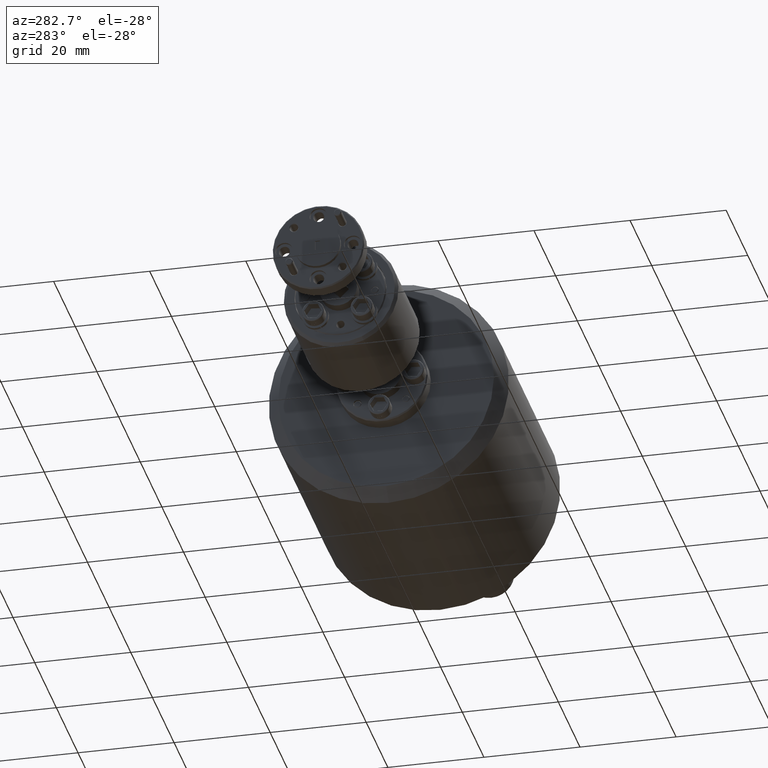
[diagram: clean part render]
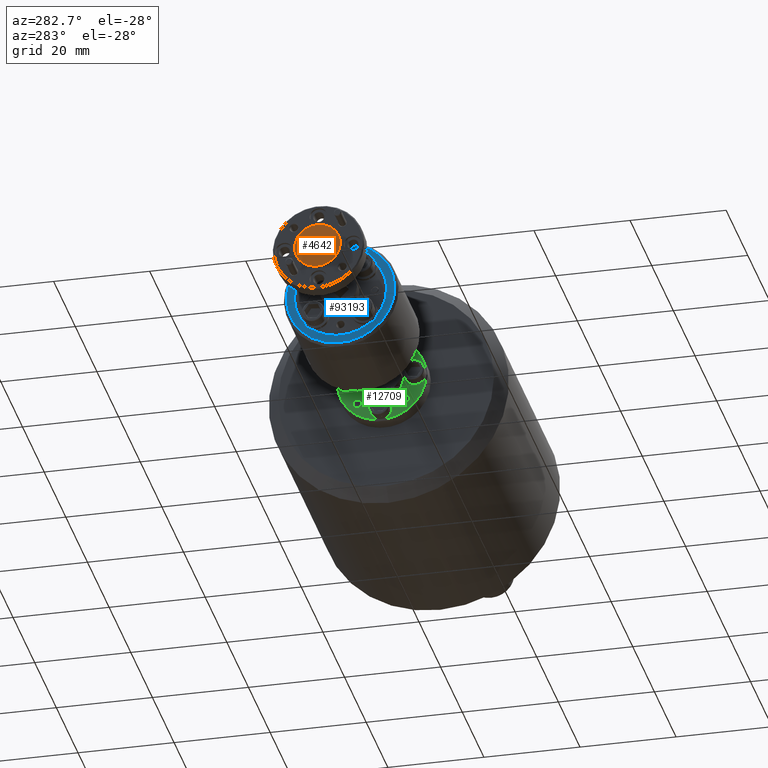
[diagram: same view with three faces highlighted in distinct colors, each labeled with its STEP entity id]
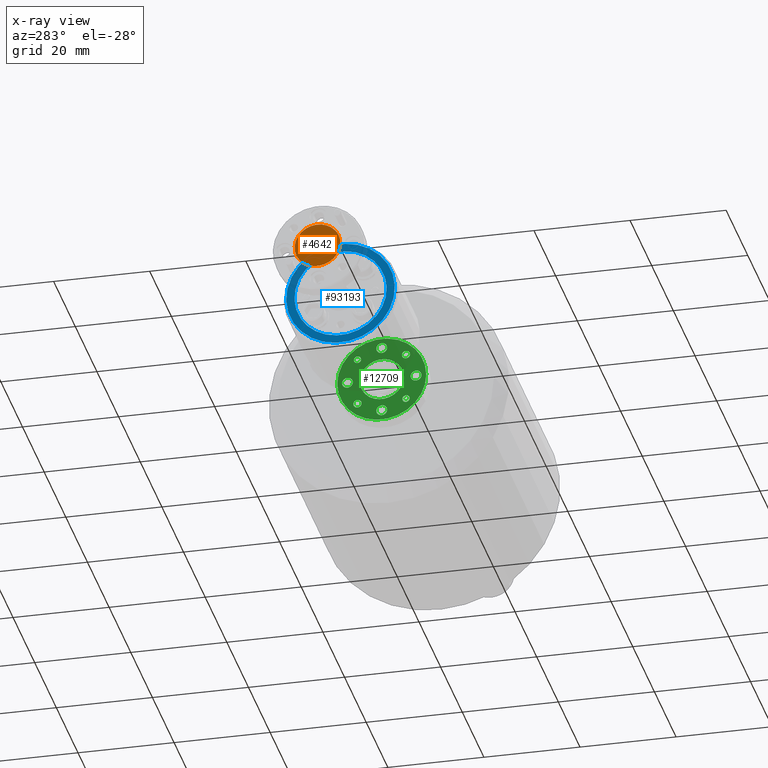
[diagram: x-ray of the same camera — body ghosted, the three highlighted faces saturated]
A machine part, auxiliary view with three faces highlighted in distinct colors.
The next image is the same camera in x-ray (body ghosted, the three faces saturated) — at least one of them is partly hidden behind the body in this view.
Their STEP definitions:

[orange] entity #4642 — the highlighted planar face has unit normal (1, 0, -0).
#1303 = CARTESIAN_POINT ( 'NONE',  ( -53.51251138113374900, 36.06144927225278700, 38.35160134325450800 ) ) ;
#2221 = ORIENTED_EDGE ( 'NONE', *, *, #44944, .F. ) ;
#3432 = EDGE_LOOP ( 'NONE', ( #53736, #2221, #65286, #59126 ) ) ;
#4642 = ADVANCED_FACE ( 'NONE', ( #39432, #68487 ), #82022, .F. ) ;
#6049 = DIRECTION ( 'NONE',  ( 0.0000000000000000000, -0.7071067811865466800, -0.7071067811865482400 ) ) ;
#10184 = VECTOR ( 'NONE', #62559, 1000.000000000000000 ) ;
#12156 = VERTEX_POINT ( 'NONE', #21984 ) ;
#12263 = ORIENTED_EDGE ( 'NONE', *, *, #46750, .T. ) ;
#14547 = LINE ( 'NONE', #95614, #48670 ) ;
#14769 = DIRECTION ( 'NONE',  ( 1.464648536792187700E-016, -1.000000000000000000, -1.221245327087672200E-015 ) ) ;
#14780 = DIRECTION ( 'NONE',  ( -1.000000000000000000, -1.464648536792188000E-016, 4.178127592846280000E-017 ) ) ;
#15062 = DIRECTION ( 'NONE',  ( -4.178127592846300300E-017, 1.276756478318930000E-015, -1.000000000000000000 ) ) ;
#18641 = EDGE_LOOP ( 'NONE', ( #12263, #21246 ) ) ;
#18986 = CARTESIAN_POINT ( 'NONE',  ( -53.51251138113374900, 35.04544927225278900, 36.31960134325451200 ) ) ;
#21246 = ORIENTED_EDGE ( 'NONE', *, *, #49031, .T. ) ;
#21984 = CARTESIAN_POINT ( 'NONE',  ( -53.51251138113374900, 38.92104531765371400, 40.70319738865544700 ) ) ;
#28313 = CARTESIAN_POINT ( 'NONE',  ( -53.51251138113374900, 35.04544927225278900, 38.35160134325450800 ) ) ;
#29451 = CIRCLE ( 'NONE', #49993, 4.762499999999996600 ) ;
#29884 = EDGE_CURVE ( 'NONE', #101265, #94819, #103582, .T. ) ;
#30839 = AXIS2_PLACEMENT_3D ( 'NONE', #33662, #81317, #57258 ) ;
#33662 = CARTESIAN_POINT ( 'NONE',  ( -53.51251138113374900, 32.18585322685184700, 40.70319738865544000 ) ) ;
#37107 = DIRECTION ( 'NONE',  ( -1.000000000000000000, -1.464648536792188000E-016, 4.178127592846280000E-017 ) ) ;
#38957 = CARTESIAN_POINT ( 'NONE',  ( -53.51251138113374900, 35.04544927225278900, 36.31960134325451200 ) ) ;
#39432 = FACE_BOUND ( 'NONE', #3432, .T. ) ;
#44944 = EDGE_CURVE ( 'NONE', #52994, #84669, #61120, .T. ) ;
#46073 = EDGE_CURVE ( 'NONE', #94819, #52994, #47191, .T. ) ;
#46750 = EDGE_CURVE ( 'NONE', #73091, #12156, #29451, .T. ) ;
#47191 = LINE ( 'NONE', #68649, #73723 ) ;
#48670 = VECTOR ( 'NONE', #14769, 1000.000000000000000 ) ;
#49031 = EDGE_CURVE ( 'NONE', #12156, #73091, #50639, .T. ) ;
#49993 = AXIS2_PLACEMENT_3D ( 'NONE', #103671, #14780, #63801 ) ;
#50639 = CIRCLE ( 'NONE', #52918, 4.762499999999996600 ) ;
#52918 = AXIS2_PLACEMENT_3D ( 'NONE', #93261, #37107, #6049 ) ;
#52994 = VERTEX_POINT ( 'NONE', #1303 ) ;
#53736 = ORIENTED_EDGE ( 'NONE', *, *, #75634, .F. ) ;
#57258 = DIRECTION ( 'NONE',  ( 7.402246770642860900E-017, -0.7071067811865466800, -0.7071067811865483500 ) ) ;
#59126 = ORIENTED_EDGE ( 'NONE', *, *, #29884, .F. ) ;
#61120 = LINE ( 'NONE', #87126, #95301 ) ;
#62559 = DIRECTION ( 'NONE',  ( 4.178127592846296000E-017, -1.054711873393898700E-015, 1.000000000000000000 ) ) ;
#63801 = DIRECTION ( 'NONE',  ( 0.0000000000000000000, -0.7071067811865466800, -0.7071067811865482400 ) ) ;
#65286 = ORIENTED_EDGE ( 'NONE', *, *, #46073, .F. ) ;
#68487 = FACE_OUTER_BOUND ( 'NONE', #18641, .T. ) ;
#68649 = CARTESIAN_POINT ( 'NONE',  ( -53.51251138113374900, 35.04544927225278900, 38.35160134325450800 ) ) ;
#71355 = CARTESIAN_POINT ( 'NONE',  ( -53.51251138113374900, 36.06144927225278700, 36.31960134325451200 ) ) ;
#73091 = VERTEX_POINT ( 'NONE', #94779 ) ;
#73723 = VECTOR ( 'NONE', #100754, 1000.000000000000000 ) ;
#75634 = EDGE_CURVE ( 'NONE', #84669, #101265, #14547, .T. ) ;
#81317 = DIRECTION ( 'NONE',  ( 1.000000000000000000, 1.464648536792188000E-016, -4.178127592846278700E-017 ) ) ;
#82022 = PLANE ( 'NONE',  #30839 ) ;
#84669 = VERTEX_POINT ( 'NONE', #71355 ) ;
#87126 = CARTESIAN_POINT ( 'NONE',  ( -53.51251138113374900, 36.06144927225279400, 36.31960134325451200 ) ) ;
#93261 = CARTESIAN_POINT ( 'NONE',  ( -53.51251138113374900, 35.55344927225279200, 37.33560134325451000 ) ) ;
#94779 = CARTESIAN_POINT ( 'NONE',  ( -53.51251138113374900, 32.18585322685186200, 33.96800529785358000 ) ) ;
#94819 = VERTEX_POINT ( 'NONE', #28313 ) ;
#95301 = VECTOR ( 'NONE', #15062, 1000.000000000000000 ) ;
#95614 = CARTESIAN_POINT ( 'NONE',  ( -53.51251138113374900, 35.04544927225278900, 36.31960134325451200 ) ) ;
#100754 = DIRECTION ( 'NONE',  ( -1.464648536792187700E-016, 1.000000000000000000, 1.498801083243961300E-015 ) ) ;
#101265 = VERTEX_POINT ( 'NONE', #18986 ) ;
#103582 = LINE ( 'NONE', #38957, #10184 ) ;
#103671 = CARTESIAN_POINT ( 'NONE',  ( -53.51251138113374900, 35.55344927225279200, 37.33560134325451000 ) ) ;

[blue] entity #93193 — the highlighted planar face has unit normal (1, 0, -0).
#1478 = CARTESIAN_POINT ( 'NONE',  ( -32.20191138113374100, 31.13701532693852100, 26.93113498468159900 ) ) ;
#6098 = ORIENTED_EDGE ( 'NONE', *, *, #54891, .T. ) ;
#6539 = EDGE_CURVE ( 'NONE', #102457, #17176, #8917, .T. ) ;
#7175 = DIRECTION ( 'NONE',  ( 0.0000000000000000000, -0.3907311284892739400, -0.9205048534524402600 ) ) ;
#8917 = CIRCLE ( 'NONE', #92571, 11.30299999999999700 ) ;
#11188 = VERTEX_POINT ( 'NONE', #61303 ) ;
#11370 = CARTESIAN_POINT ( 'NONE',  ( -32.20191138113374100, 39.96988321756705900, 47.74006770182745600 ) ) ;
#15827 = CARTESIAN_POINT ( 'NONE',  ( -32.20191138113374100, 35.55344927225279200, 37.33560134325452400 ) ) ;
#17176 = VERTEX_POINT ( 'NONE', #1478 ) ;
#21829 = DIRECTION ( 'NONE',  ( 0.0000000000000000000, -0.3907311284892742200, -0.9205048534524401500 ) ) ;
#22121 = DIRECTION ( 'NONE',  ( 1.876851028651199200E-017, -0.3907311284892742200, -0.9205048534524401500 ) ) ;
#22329 = DIRECTION ( 'NONE',  ( 1.000000000000000000, 1.464648536792188000E-016, -4.178127592846281800E-017 ) ) ;
#22873 = FACE_OUTER_BOUND ( 'NONE', #75441, .T. ) ;
#24194 = FACE_BOUND ( 'NONE', #64641, .T. ) ;
#27509 = CIRCLE ( 'NONE', #55013, 9.601199999999998600 ) ;
#28295 = CIRCLE ( 'NONE', #47822, 9.601199999999998600 ) ;
#29081 = AXIS2_PLACEMENT_3D ( 'NONE', #15827, #72669, #80835 ) ;
#37185 = CARTESIAN_POINT ( 'NONE',  ( -32.20191138113374100, 31.80196156140157600, 28.49765014428695800 ) ) ;
#38376 = DIRECTION ( 'NONE',  ( 1.000000000000000000, 1.464648536792188200E-016, -4.178127592846278700E-017 ) ) ;
#45846 = CARTESIAN_POINT ( 'NONE',  ( -32.20191138113374100, 35.55344927225279200, 37.33560134325452400 ) ) ;
#46489 = PLANE ( 'NONE',  #91028 ) ;
#47822 = AXIS2_PLACEMENT_3D ( 'NONE', #71020, #22329, #7175 ) ;
#53377 = CIRCLE ( 'NONE', #29081, 11.30299999999999700 ) ;
#53378 = EDGE_CURVE ( 'NONE', #11188, #100450, #28295, .T. ) ;
#54168 = CARTESIAN_POINT ( 'NONE',  ( -32.20191138113374100, 35.55344927225279200, 37.33560134325452400 ) ) ;
#54891 = EDGE_CURVE ( 'NONE', #17176, #102457, #53377, .T. ) ;
#55013 = AXIS2_PLACEMENT_3D ( 'NONE', #54168, #77512, #102518 ) ;
#61303 = CARTESIAN_POINT ( 'NONE',  ( -32.20191138113374100, 39.30493698310400700, 46.17355254222209000 ) ) ;
#64641 = EDGE_LOOP ( 'NONE', ( #76661, #101065 ) ) ;
#67935 = EDGE_CURVE ( 'NONE', #100450, #11188, #27509, .T. ) ;
#70458 = CARTESIAN_POINT ( 'NONE',  ( -32.20191138113374100, 35.55344927225279200, 37.33560134325452400 ) ) ;
#71020 = CARTESIAN_POINT ( 'NONE',  ( -32.20191138113374100, 35.55344927225279200, 37.33560134325452400 ) ) ;
#72669 = DIRECTION ( 'NONE',  ( -1.000000000000000000, -1.464648536792188000E-016, 4.178127592846281800E-017 ) ) ;
#75441 = EDGE_LOOP ( 'NONE', ( #6098, #94093 ) ) ;
#76661 = ORIENTED_EDGE ( 'NONE', *, *, #53378, .T. ) ;
#77512 = DIRECTION ( 'NONE',  ( 1.000000000000000000, 1.464648536792188000E-016, -4.178127592846281800E-017 ) ) ;
#80835 = DIRECTION ( 'NONE',  ( 0.0000000000000000000, -0.3907311284892742200, -0.9205048534524401500 ) ) ;
#91028 = AXIS2_PLACEMENT_3D ( 'NONE', #70458, #38376, #22121 ) ;
#92571 = AXIS2_PLACEMENT_3D ( 'NONE', #45846, #102263, #21829 ) ;
#93193 = ADVANCED_FACE ( 'NONE', ( #22873, #24194 ), #46489, .F. ) ;
#94093 = ORIENTED_EDGE ( 'NONE', *, *, #6539, .T. ) ;
#100450 = VERTEX_POINT ( 'NONE', #37185 ) ;
#101065 = ORIENTED_EDGE ( 'NONE', *, *, #67935, .T. ) ;
#102263 = DIRECTION ( 'NONE',  ( -1.000000000000000000, -1.464648536792188000E-016, 4.178127592846281800E-017 ) ) ;
#102457 = VERTEX_POINT ( 'NONE', #11370 ) ;
#102518 = DIRECTION ( 'NONE',  ( 0.0000000000000000000, -0.3907311284892739400, -0.9205048534524402600 ) ) ;

[green] entity #12709 — the highlighted planar face has unit normal (-1, -0, 0).
#223 = VERTEX_POINT ( 'NONE', #69738 ) ;
#622 = DIRECTION ( 'NONE',  ( 1.224646799147353500E-016, -1.000000000000000000, 0.0000000000000000000 ) ) ;
#814 = AXIS2_PLACEMENT_3D ( 'NONE', #70546, #79748, #31392 ) ;
#961 = CARTESIAN_POINT ( 'NONE',  ( 5.872688618866259700, 40.12544927225278000, 37.33560134325452400 ) ) ;
#1794 = VERTEX_POINT ( 'NONE', #23826 ) ;
#2375 = ORIENTED_EDGE ( 'NONE', *, *, #18827, .T. ) ;
#3106 = DIRECTION ( 'NONE',  ( -1.000000000000000000, -1.224646799147353500E-016, 0.0000000000000000000 ) ) ;
#5741 = DIRECTION ( 'NONE',  ( 0.0000000000000000000, -1.000000000000000000, 0.0000000000000000000 ) ) ;
#7026 = ORIENTED_EDGE ( 'NONE', *, *, #9970, .F. ) ;
#9340 = CARTESIAN_POINT ( 'NONE',  ( 5.872688618866258800, 40.12544927225278000, 37.33560134325452400 ) ) ;
#9587 = DIRECTION ( 'NONE',  ( -1.000000000000000000, -1.224646799147353500E-016, 0.0000000000000000000 ) ) ;
#9593 = DIRECTION ( 'NONE',  ( 0.0000000000000000000, -1.000000000000000000, 0.0000000000000000000 ) ) ;
#9638 = DIRECTION ( 'NONE',  ( -1.000000000000000000, -1.224646799147353500E-016, 0.0000000000000000000 ) ) ;
#9795 = FACE_BOUND ( 'NONE', #40001, .T. ) ;
#9956 = CARTESIAN_POINT ( 'NONE',  ( 5.872688618866259700, 42.69719927225279600, 37.33560134325452400 ) ) ;
#9970 = EDGE_CURVE ( 'NONE', #79422, #88028, #10856, .T. ) ;
#10309 = AXIS2_PLACEMENT_3D ( 'NONE', #33617, #32584, #24427 ) ;
#10856 = CIRCLE ( 'NONE', #96893, 1.130299999999993900 ) ;
#11118 = DIRECTION ( 'NONE',  ( 0.0000000000000000000, -1.000000000000000000, 0.0000000000000000000 ) ) ;
#11987 = AXIS2_PLACEMENT_3D ( 'NONE', #96441, #47037, #63252 ) ;
#12336 = FACE_BOUND ( 'NONE', #50623, .T. ) ;
#12534 = CARTESIAN_POINT ( 'NONE',  ( 5.872688618866260600, 26.28244927225280100, 37.33560134325452400 ) ) ;
#12709 = ADVANCED_FACE ( 'NONE', ( #96977, #94438, #101970, #84333, #80586, #27510, #12336, #9795, #79249, #16116 ), #72224, .T. ) ;
#12854 = AXIS2_PLACEMENT_3D ( 'NONE', #18940, #3106, #59527 ) ;
#12990 = EDGE_CURVE ( 'NONE', #81666, #1794, #56422, .T. ) ;
#13037 = EDGE_CURVE ( 'NONE', #102740, #30338, #16021, .T. ) ;
#13476 = AXIS2_PLACEMENT_3D ( 'NONE', #25888, #41825, #58699 ) ;
#14318 = EDGE_LOOP ( 'NONE', ( #2375, #95710 ) ) ;
#14712 = EDGE_CURVE ( 'NONE', #51330, #96303, #22116, .T. ) ;
#16021 = CIRCLE ( 'NONE', #60530, 1.130299999999993900 ) ;
#16116 = FACE_BOUND ( 'NONE', #50868, .T. ) ;
#16172 = EDGE_CURVE ( 'NONE', #23614, #87785, #19393, .T. ) ;
#16678 = AXIS2_PLACEMENT_3D ( 'NONE', #92021, #51748, #67971 ) ;
#17210 = AXIS2_PLACEMENT_3D ( 'NONE', #84508, #52003, #11118 ) ;
#17318 = DIRECTION ( 'NONE',  ( 0.0000000000000000000, -1.000000000000000000, 0.0000000000000000000 ) ) ;
#18827 = EDGE_CURVE ( 'NONE', #34776, #19797, #92389, .T. ) ;
#18940 = CARTESIAN_POINT ( 'NONE',  ( 5.872688618866259700, 40.60484334035419400, 42.38699541135592600 ) ) ;
#19393 = CIRCLE ( 'NONE', #62032, 4.571999999999993000 ) ;
#19797 = VERTEX_POINT ( 'NONE', #12534 ) ;
#20267 = CARTESIAN_POINT ( 'NONE',  ( 5.872688618866259700, 35.55344927225279200, 31.32215134325451400 ) ) ;
#20911 = CARTESIAN_POINT ( 'NONE',  ( 5.872688618866259700, 35.55344927225279200, 37.33560134325452400 ) ) ;
#21308 = VERTEX_POINT ( 'NONE', #28598 ) ;
#21339 = CARTESIAN_POINT ( 'NONE',  ( 5.872688618866258800, 44.82444927225277800, 37.33560134325452400 ) ) ;
#21840 = CIRCLE ( 'NONE', #66516, 0.8508999999999946600 ) ;
#22116 = CIRCLE ( 'NONE', #68112, 0.8508999999999946600 ) ;
#22190 = ORIENTED_EDGE ( 'NONE', *, *, #90783, .T. ) ;
#23435 = ORIENTED_EDGE ( 'NONE', *, *, #75946, .F. ) ;
#23614 = VERTEX_POINT ( 'NONE', #33470 ) ;
#23826 = CARTESIAN_POINT ( 'NONE',  ( 5.872688618866259700, 40.60484334035419400, 43.14264541135592200 ) ) ;
#23884 = DIRECTION ( 'NONE',  ( -1.000000000000000000, -1.224646799147353500E-016, 0.0000000000000000000 ) ) ;
#24427 = DIRECTION ( 'NONE',  ( 0.0000000000000000000, -1.000000000000000000, 0.0000000000000000000 ) ) ;
#25793 = CIRCLE ( 'NONE', #89486, 4.571999999999993000 ) ;
#25888 = CARTESIAN_POINT ( 'NONE',  ( 5.872688618866259700, 30.50205520415139700, 32.28420727515312200 ) ) ;
#27510 = FACE_BOUND ( 'NONE', #63932, .T. ) ;
#28278 = CARTESIAN_POINT ( 'NONE',  ( 5.872688618866259700, 35.55344927225279200, 43.34905134325453000 ) ) ;
#28299 = CARTESIAN_POINT ( 'NONE',  ( 5.872688618866259700, 35.55344927225279200, 37.33560134325452400 ) ) ;
#28499 = VERTEX_POINT ( 'NONE', #77788 ) ;
#28598 = CARTESIAN_POINT ( 'NONE',  ( 5.872688618866259700, 28.40969927225279400, 38.46590134325452200 ) ) ;
#28640 = DIRECTION ( 'NONE',  ( 9.355643813918720600E-017, -1.000000000000000000, 0.0000000000000000000 ) ) ;
#29643 = VERTEX_POINT ( 'NONE', #90222 ) ;
#29701 = EDGE_CURVE ( 'NONE', #36875, #21308, #57430, .T. ) ;
#30338 = VERTEX_POINT ( 'NONE', #28278 ) ;
#31392 = DIRECTION ( 'NONE',  ( 9.355643813918720600E-017, -1.000000000000000000, 0.0000000000000000000 ) ) ;
#32584 = DIRECTION ( 'NONE',  ( -1.000000000000000000, -1.224646799147353500E-016, 0.0000000000000000000 ) ) ;
#32653 = CIRCLE ( 'NONE', #13476, 0.7556499999999966000 ) ;
#33470 = CARTESIAN_POINT ( 'NONE',  ( 5.872688618866260600, 30.98144927225279900, 37.33560134325452400 ) ) ;
#33617 = CARTESIAN_POINT ( 'NONE',  ( 5.872688618866259700, 30.50205520415139700, 32.28420727515312200 ) ) ;
#34776 = VERTEX_POINT ( 'NONE', #21339 ) ;
#35748 = DIRECTION ( 'NONE',  ( 0.0000000000000000000, -1.000000000000000000, 0.0000000000000000000 ) ) ;
#36875 = VERTEX_POINT ( 'NONE', #59397 ) ;
#37146 = DIRECTION ( 'NONE',  ( -1.000000000000000000, -1.224646799147353500E-016, 0.0000000000000000000 ) ) ;
#37807 = DIRECTION ( 'NONE',  ( -1.000000000000000000, -1.224646799147353500E-016, 0.0000000000000000000 ) ) ;
#37904 = CARTESIAN_POINT ( 'NONE',  ( 5.872688618866259700, 35.55344927225279200, 44.47935134325452100 ) ) ;
#38085 = CIRCLE ( 'NONE', #79222, 1.130299999999993900 ) ;
#38257 = DIRECTION ( 'NONE',  ( -1.000000000000000000, -1.224646799147353500E-016, 0.0000000000000000000 ) ) ;
#38570 = CIRCLE ( 'NONE', #12854, 0.7556499999999966000 ) ;
#39498 = ORIENTED_EDGE ( 'NONE', *, *, #66839, .F. ) ;
#40001 = EDGE_LOOP ( 'NONE', ( #39498, #53002 ) ) ;
#40015 = CARTESIAN_POINT ( 'NONE',  ( 5.872688618866259700, 40.60484334035420100, 31.43330727515313000 ) ) ;
#40627 = ORIENTED_EDGE ( 'NONE', *, *, #29701, .F. ) ;
#41825 = DIRECTION ( 'NONE',  ( -1.000000000000000000, -1.224646799147353500E-016, 0.0000000000000000000 ) ) ;
#42080 = DIRECTION ( 'NONE',  ( -1.000000000000000000, -1.224646799147353500E-016, 0.0000000000000000000 ) ) ;
#46367 = DIRECTION ( 'NONE',  ( 0.0000000000000000000, -1.000000000000000000, 0.0000000000000000000 ) ) ;
#46727 = DIRECTION ( 'NONE',  ( 0.0000000000000000000, -1.000000000000000000, 0.0000000000000000000 ) ) ;
#47037 = DIRECTION ( 'NONE',  ( -1.000000000000000000, -1.224646799147353500E-016, 0.0000000000000000000 ) ) ;
#48118 = EDGE_CURVE ( 'NONE', #88028, #79422, #38085, .T. ) ;
#48380 = CIRCLE ( 'NONE', #814, 9.270999999999988400 ) ;
#49718 = EDGE_LOOP ( 'NONE', ( #81044, #96866 ) ) ;
#50269 = AXIS2_PLACEMENT_3D ( 'NONE', #51096, #67325, #66979 ) ;
#50623 = EDGE_LOOP ( 'NONE', ( #40627, #54086 ) ) ;
#50868 = EDGE_LOOP ( 'NONE', ( #22190, #87292 ) ) ;
#51096 = CARTESIAN_POINT ( 'NONE',  ( 5.872688618866259700, 35.55344927225279200, 44.47935134325452100 ) ) ;
#51330 = VERTEX_POINT ( 'NONE', #40015 ) ;
#51728 = AXIS2_PLACEMENT_3D ( 'NONE', #101389, #38257, #46367 ) ;
#51748 = DIRECTION ( 'NONE',  ( -1.000000000000000000, -1.224646799147353500E-016, 0.0000000000000000000 ) ) ;
#52003 = DIRECTION ( 'NONE',  ( -1.000000000000000000, -1.224646799147353500E-016, 0.0000000000000000000 ) ) ;
#52335 = ORIENTED_EDGE ( 'NONE', *, *, #69245, .F. ) ;
#52852 = CIRCLE ( 'NONE', #16678, 1.130299999999993900 ) ;
#53002 = ORIENTED_EDGE ( 'NONE', *, *, #13037, .F. ) ;
#53387 = EDGE_CURVE ( 'NONE', #96303, #51330, #72551, .T. ) ;
#53576 = CARTESIAN_POINT ( 'NONE',  ( 5.872688618866259700, 40.60484334035419400, 41.63134541135593000 ) ) ;
#54086 = ORIENTED_EDGE ( 'NONE', *, *, #82928, .F. ) ;
#55831 = ORIENTED_EDGE ( 'NONE', *, *, #12990, .F. ) ;
#56422 = CIRCLE ( 'NONE', #51728, 0.7556499999999966000 ) ;
#56737 = ORIENTED_EDGE ( 'NONE', *, *, #72920, .F. ) ;
#56993 = CARTESIAN_POINT ( 'NONE',  ( 5.872688618866259700, 35.55344927225279200, 30.19185134325452300 ) ) ;
#57430 = CIRCLE ( 'NONE', #17210, 1.130299999999990300 ) ;
#57710 = DIRECTION ( 'NONE',  ( 0.0000000000000000000, -1.000000000000000000, 0.0000000000000000000 ) ) ;
#57873 = CIRCLE ( 'NONE', #69453, 0.8508999999999946600 ) ;
#58357 = EDGE_LOOP ( 'NONE', ( #7026, #60144 ) ) ;
#58699 = DIRECTION ( 'NONE',  ( 0.0000000000000000000, -1.000000000000000000, 0.0000000000000000000 ) ) ;
#59131 = ORIENTED_EDGE ( 'NONE', *, *, #91785, .F. ) ;
#59372 = DIRECTION ( 'NONE',  ( -1.000000000000000000, -1.224646799147353500E-016, 0.0000000000000000000 ) ) ;
#59397 = CARTESIAN_POINT ( 'NONE',  ( 5.872688618866259700, 28.40969927225279400, 36.20530134325453300 ) ) ;
#59527 = DIRECTION ( 'NONE',  ( 0.0000000000000000000, -1.000000000000000000, 0.0000000000000000000 ) ) ;
#59853 = VERTEX_POINT ( 'NONE', #94083 ) ;
#60144 = ORIENTED_EDGE ( 'NONE', *, *, #48118, .F. ) ;
#60530 = AXIS2_PLACEMENT_3D ( 'NONE', #37904, #78129, #94375 ) ;
#62032 = AXIS2_PLACEMENT_3D ( 'NONE', #103853, #88067, #71072 ) ;
#62410 = CARTESIAN_POINT ( 'NONE',  ( 5.872688618866259700, 35.55344927225279200, 45.60965134325451900 ) ) ;
#63252 = DIRECTION ( 'NONE',  ( 0.0000000000000000000, -1.000000000000000000, 0.0000000000000000000 ) ) ;
#63436 = AXIS2_PLACEMENT_3D ( 'NONE', #28299, #37807, #28640 ) ;
#63932 = EDGE_LOOP ( 'NONE', ( #56737, #52335 ) ) ;
#64079 = CIRCLE ( 'NONE', #10309, 0.7556499999999966000 ) ;
#65339 = ORIENTED_EDGE ( 'NONE', *, *, #95613, .F. ) ;
#65453 = CARTESIAN_POINT ( 'NONE',  ( 5.872688618866259700, 42.69719927225279600, 36.20530134325453300 ) ) ;
#65822 = DIRECTION ( 'NONE',  ( -1.000000000000000000, -1.224646799147353500E-016, 0.0000000000000000000 ) ) ;
#66516 = AXIS2_PLACEMENT_3D ( 'NONE', #77387, #37146, #5741 ) ;
#66839 = EDGE_CURVE ( 'NONE', #30338, #102740, #100923, .T. ) ;
#66979 = DIRECTION ( 'NONE',  ( 0.0000000000000000000, -1.000000000000000000, 0.0000000000000000000 ) ) ;
#67166 = ORIENTED_EDGE ( 'NONE', *, *, #88784, .F. ) ;
#67325 = DIRECTION ( 'NONE',  ( -1.000000000000000000, -1.224646799147353500E-016, 0.0000000000000000000 ) ) ;
#67836 = CARTESIAN_POINT ( 'NONE',  ( 5.872688618866259700, 42.69719927225279600, 37.33560134325452400 ) ) ;
#67971 = DIRECTION ( 'NONE',  ( 0.0000000000000000000, -1.000000000000000000, 0.0000000000000000000 ) ) ;
#68112 = AXIS2_PLACEMENT_3D ( 'NONE', #95086, #79167, #46727 ) ;
#69044 = ORIENTED_EDGE ( 'NONE', *, *, #89297, .F. ) ;
#69245 = EDGE_CURVE ( 'NONE', #93988, #223, #77817, .T. ) ;
#69453 = AXIS2_PLACEMENT_3D ( 'NONE', #74226, #9638, #91540 ) ;
#69738 = CARTESIAN_POINT ( 'NONE',  ( 5.872688618866259700, 35.55344927225279200, 29.06155134325453600 ) ) ;
#69970 = DIRECTION ( 'NONE',  ( -1.897116662266852400E-016, 1.000000000000000000, 0.0000000000000000000 ) ) ;
#70273 = CARTESIAN_POINT ( 'NONE',  ( 5.872688618866259700, 42.69719927225279600, 38.46590134325452200 ) ) ;
#70546 = CARTESIAN_POINT ( 'NONE',  ( 5.872688618866259700, 35.55344927225279200, 37.33560134325452400 ) ) ;
#71072 = DIRECTION ( 'NONE',  ( -1.897116662266852400E-016, 1.000000000000000000, 0.0000000000000000000 ) ) ;
#72224 = PLANE ( 'NONE',  #103779 ) ;
#72439 = CIRCLE ( 'NONE', #82446, 1.130299999999990300 ) ;
#72551 = CIRCLE ( 'NONE', #11987, 0.8508999999999946600 ) ;
#72920 = EDGE_CURVE ( 'NONE', #223, #93988, #52852, .T. ) ;
#73265 = VERTEX_POINT ( 'NONE', #104564 ) ;
#74175 = CARTESIAN_POINT ( 'NONE',  ( 5.872688618866259700, 28.40969927225279400, 37.33560134325452400 ) ) ;
#74226 = CARTESIAN_POINT ( 'NONE',  ( 5.872688618866259700, 30.50205520415139300, 42.38699541135592600 ) ) ;
#74967 = EDGE_LOOP ( 'NONE', ( #59131, #65339 ) ) ;
#75946 = EDGE_CURVE ( 'NONE', #1794, #81666, #38570, .T. ) ;
#76994 = EDGE_CURVE ( 'NONE', #19797, #34776, #48380, .T. ) ;
#77387 = CARTESIAN_POINT ( 'NONE',  ( 5.872688618866259700, 30.50205520415139300, 42.38699541135592600 ) ) ;
#77788 = CARTESIAN_POINT ( 'NONE',  ( 5.872688618866259700, 30.50205520415139700, 33.03985727515312500 ) ) ;
#77817 = CIRCLE ( 'NONE', #100470, 1.130299999999993900 ) ;
#78129 = DIRECTION ( 'NONE',  ( -1.000000000000000000, -1.224646799147353500E-016, 0.0000000000000000000 ) ) ;
#79167 = DIRECTION ( 'NONE',  ( -1.000000000000000000, -1.224646799147353500E-016, 0.0000000000000000000 ) ) ;
#79222 = AXIS2_PLACEMENT_3D ( 'NONE', #9956, #42080, #9593 ) ;
#79249 = FACE_OUTER_BOUND ( 'NONE', #14318, .T. ) ;
#79422 = VERTEX_POINT ( 'NONE', #65453 ) ;
#79748 = DIRECTION ( 'NONE',  ( -1.000000000000000000, -1.224646799147353500E-016, 0.0000000000000000000 ) ) ;
#80586 = FACE_BOUND ( 'NONE', #58357, .T. ) ;
#81044 = ORIENTED_EDGE ( 'NONE', *, *, #14712, .F. ) ;
#81666 = VERTEX_POINT ( 'NONE', #53576 ) ;
#81918 = EDGE_LOOP ( 'NONE', ( #69044, #67166 ) ) ;
#82446 = AXIS2_PLACEMENT_3D ( 'NONE', #74175, #9587, #17318 ) ;
#82928 = EDGE_CURVE ( 'NONE', #21308, #36875, #72439, .T. ) ;
#84333 = FACE_BOUND ( 'NONE', #81918, .T. ) ;
#84508 = CARTESIAN_POINT ( 'NONE',  ( 5.872688618866259700, 28.40969927225279400, 37.33560134325452400 ) ) ;
#87292 = ORIENTED_EDGE ( 'NONE', *, *, #16172, .T. ) ;
#87785 = VERTEX_POINT ( 'NONE', #9340 ) ;
#88028 = VERTEX_POINT ( 'NONE', #70273 ) ;
#88067 = DIRECTION ( 'NONE',  ( 1.000000000000000000, 1.224646799147353500E-016, -0.0000000000000000000 ) ) ;
#88784 = EDGE_CURVE ( 'NONE', #28499, #59853, #32653, .T. ) ;
#89297 = EDGE_CURVE ( 'NONE', #59853, #28499, #64079, .T. ) ;
#89486 = AXIS2_PLACEMENT_3D ( 'NONE', #20911, #93326, #69970 ) ;
#90222 = CARTESIAN_POINT ( 'NONE',  ( 5.872688618866259700, 30.50205520415139300, 41.53609541135593000 ) ) ;
#90783 = EDGE_CURVE ( 'NONE', #87785, #23614, #25793, .T. ) ;
#91075 = CARTESIAN_POINT ( 'NONE',  ( 5.872688618866259700, 40.60484334035420100, 33.13510727515311800 ) ) ;
#91540 = DIRECTION ( 'NONE',  ( 0.0000000000000000000, -1.000000000000000000, 0.0000000000000000000 ) ) ;
#91785 = EDGE_CURVE ( 'NONE', #29643, #73265, #21840, .T. ) ;
#92021 = CARTESIAN_POINT ( 'NONE',  ( 5.872688618866259700, 35.55344927225279200, 30.19185134325452300 ) ) ;
#92389 = CIRCLE ( 'NONE', #63436, 9.270999999999988400 ) ;
#93326 = DIRECTION ( 'NONE',  ( 1.000000000000000000, 1.224646799147353500E-016, -0.0000000000000000000 ) ) ;
#93988 = VERTEX_POINT ( 'NONE', #20267 ) ;
#94083 = CARTESIAN_POINT ( 'NONE',  ( 5.872688618866259700, 30.50205520415139700, 31.52855727515313000 ) ) ;
#94375 = DIRECTION ( 'NONE',  ( 0.0000000000000000000, -1.000000000000000000, 0.0000000000000000000 ) ) ;
#94438 = FACE_BOUND ( 'NONE', #49718, .T. ) ;
#95086 = CARTESIAN_POINT ( 'NONE',  ( 5.872688618866259700, 40.60484334035420100, 32.28420727515312200 ) ) ;
#95613 = EDGE_CURVE ( 'NONE', #73265, #29643, #57873, .T. ) ;
#95710 = ORIENTED_EDGE ( 'NONE', *, *, #76994, .T. ) ;
#96303 = VERTEX_POINT ( 'NONE', #91075 ) ;
#96441 = CARTESIAN_POINT ( 'NONE',  ( 5.872688618866259700, 40.60484334035420100, 32.28420727515312200 ) ) ;
#96866 = ORIENTED_EDGE ( 'NONE', *, *, #53387, .F. ) ;
#96893 = AXIS2_PLACEMENT_3D ( 'NONE', #67836, #59372, #35748 ) ;
#96977 = FACE_BOUND ( 'NONE', #74967, .T. ) ;
#100470 = AXIS2_PLACEMENT_3D ( 'NONE', #56993, #65822, #57710 ) ;
#100923 = CIRCLE ( 'NONE', #50269, 1.130299999999993900 ) ;
#101389 = CARTESIAN_POINT ( 'NONE',  ( 5.872688618866259700, 40.60484334035419400, 42.38699541135592600 ) ) ;
#101571 = EDGE_LOOP ( 'NONE', ( #55831, #23435 ) ) ;
#101970 = FACE_BOUND ( 'NONE', #101571, .T. ) ;
#102740 = VERTEX_POINT ( 'NONE', #62410 ) ;
#103779 = AXIS2_PLACEMENT_3D ( 'NONE', #961, #23884, #622 ) ;
#103853 = CARTESIAN_POINT ( 'NONE',  ( 5.872688618866259700, 35.55344927225279200, 37.33560134325452400 ) ) ;
#104564 = CARTESIAN_POINT ( 'NONE',  ( 5.872688618866259700, 30.50205520415139300, 43.23789541135592200 ) ) ;